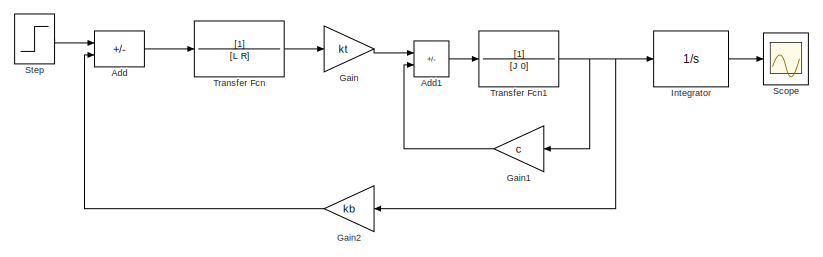
[diagram: root canvas - part 1/2, top center region]
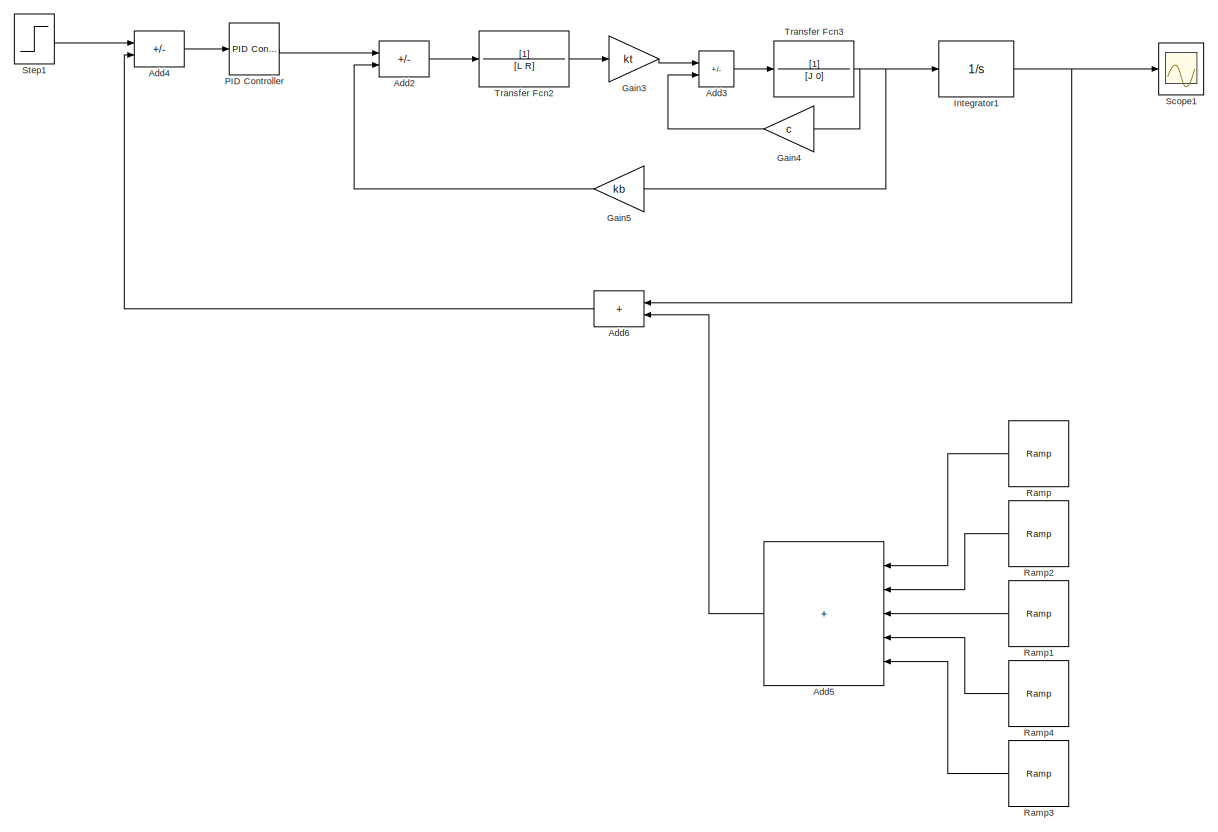
[diagram: root canvas - part 2/2, full width, middle band]
MODEL slx_e3145d1b2488
KIND model
CONFIG AbsTol = auto
CONFIG EnableMultiTasking = off
CONFIG FixedStep = auto
CONFIG MaxStep = auto
CONFIG MinStep = auto
CONFIG RelTol = 1e-3
CONFIG SampleTimeConstraint = Unconstrained
CONFIG SolverName = VariableStepAuto
CONFIG StartTime = 0.0
CONFIG StopTime = 700
BLOCK [Sum] Add
  IconShape = rectangular
  Inputs = +-
  Ports = [2, 1]
BLOCK [Sum] Add1
  IconShape = rectangular
  Inputs = +-
  Ports = [2, 1]
BLOCK [Sum] Add2
  IconShape = rectangular
  Inputs = +-
  Ports = [2, 1]
BLOCK [Sum] Add3
  IconShape = rectangular
  Inputs = +-
  Ports = [2, 1]
BLOCK [Sum] Add4
  IconShape = rectangular
  Inputs = +-
  Ports = [2, 1]
BLOCK [Sum] Add5
  IconShape = rectangular
  Inputs = +++++
  Ports = [5, 1]
BLOCK [Sum] Add6
  IconShape = rectangular
  Ports = [2, 1]
BLOCK [Gain] Gain
  Gain = kt
BLOCK [Gain] Gain1
  Gain = c
BLOCK [Gain] Gain2
  Gain = kb
BLOCK [Gain] Gain3
  Gain = kt
BLOCK [Gain] Gain4
  Gain = c
BLOCK [Gain] Gain5
  Gain = kb
BLOCK [Integrator] Integrator
  Ports = [1, 1]
BLOCK [Integrator] Integrator1
  Ports = [1, 1]
BLOCK [Reference] PID Controller  REF=slpidlib/PID Controller
  Ports = [1, 1]
  SourceBlock = slpidlib/PID Controller
  SourceProductBaseCode = SL
  SourceType = PID 1dof
BLOCK [Reference] Ramp  REF=simulink/Sources/Ramp
  Ports = [0, 1]
  SourceBlock = simulink/Sources/Ramp
  SourceProductBaseCode = SL
  SourceType = Ramp
BLOCK [Reference] Ramp1  REF=simulink/Sources/Ramp
  Ports = [0, 1]
  SourceBlock = simulink/Sources/Ramp
  SourceProductBaseCode = SL
  SourceType = Ramp
BLOCK [Reference] Ramp2  REF=simulink/Sources/Ramp
  Ports = [0, 1]
  SourceBlock = simulink/Sources/Ramp
  SourceProductBaseCode = SL
  SourceType = Ramp
BLOCK [Reference] Ramp3  REF=simulink/Sources/Ramp
  Ports = [0, 1]
  SourceBlock = simulink/Sources/Ramp
  SourceProductBaseCode = SL
  SourceType = Ramp
BLOCK [Reference] Ramp4  REF=simulink/Sources/Ramp
  Ports = [0, 1]
  SourceBlock = simulink/Sources/Ramp
  SourceProductBaseCode = SL
  SourceType = Ramp
BLOCK [Scope] Scope
  Floating = off
  NumInputPorts = 1
  Ports = [1]
  ScopeSpecificationString = Simulink.scopes.TimeScopeBlockCfg('CurrentConfiguration', extmgr.ConfigurationSet(extmgr.Configuration('Core','General UI',true),extmgr.Configuration('Core','Source UI',true),extmgr.Configuration('Sources','WiredSimulink',true),extmgr.Configuration('Visuals','Time Domain',true,'SerializedDisplays',{struct('MinYLimReal','-257.63341','MaxYLimReal','2318.7007','YLabelReal','','MinYLimMag',' 0.00000',...<+1373ch>
BLOCK [Scope] Scope1
  Floating = off
  NumInputPorts = 1
  Ports = [1]
  ScopeSpecificationString = Simulink.scopes.TimeScopeBlockCfg('CurrentConfiguration', extmgr.ConfigurationSet(extmgr.Configuration('Core','General UI',true),extmgr.Configuration('Core','Source UI',true),extmgr.Configuration('Sources','WiredSimulink',true,'DataLoggingVariableName','ScopeData1'),extmgr.Configuration('Visuals','Time Domain',true,'SerializedDisplays',{struct('MinYLimReal','-1.50368','MaxYLimReal','4.206','YLabel...<+1437ch>
BLOCK [Step] Step
  After = 3
  SampleTime = 0
BLOCK [Step] Step1
  After = 3
  SampleTime = 0
BLOCK [TransferFcn] Transfer Fcn
  Denominator = [L R]
BLOCK [TransferFcn] Transfer Fcn1
  Denominator = [J 0]
BLOCK [TransferFcn] Transfer Fcn2
  Denominator = [L R]
BLOCK [TransferFcn] Transfer Fcn3
  Denominator = [J 0]
LINE Add1:1 -> Transfer Fcn1:1
LINE Add2:1 -> Transfer Fcn2:1
LINE Add3:1 -> Transfer Fcn3:1
LINE Add4:1 -> PID Controller:1
LINE Add5:1 -> Add6:2
LINE Add6:1 -> Add4:2
LINE Add:1 -> Transfer Fcn:1
LINE Gain1:1 -> Add1:2
LINE Gain2:1 -> Add:2
LINE Gain3:1 -> Add3:1
LINE Gain4:1 -> Add3:2
LINE Gain5:1 -> Add2:2
LINE Gain:1 -> Add1:1
NET Integrator1:1 -> Add6:1, Scope1:1
LINE Integrator:1 -> Scope:1
LINE PID Controller:1 -> Add2:1
LINE Ramp1:1 -> Add5:3
LINE Ramp2:1 -> Add5:2
LINE Ramp3:1 -> Add5:5
LINE Ramp4:1 -> Add5:4
LINE Ramp:1 -> Add5:1
LINE Step1:1 -> Add4:1
LINE Step:1 -> Add:1
NET Transfer Fcn1:1 -> Gain1:1, Gain2:1, Integrator:1
LINE Transfer Fcn2:1 -> Gain3:1
NET Transfer Fcn3:1 -> Gain4:1, Gain5:1, Integrator1:1
LINE Transfer Fcn:1 -> Gain:1
note: NET lines group one-source signal fan-out (src -> all destinations, sorted); 1:1 wires keep LINE
